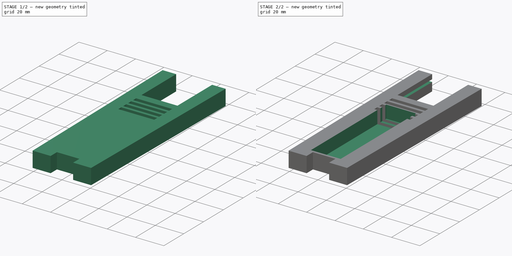
[diagram: build sequence overview — one tinted view per stage of 2, left to right]
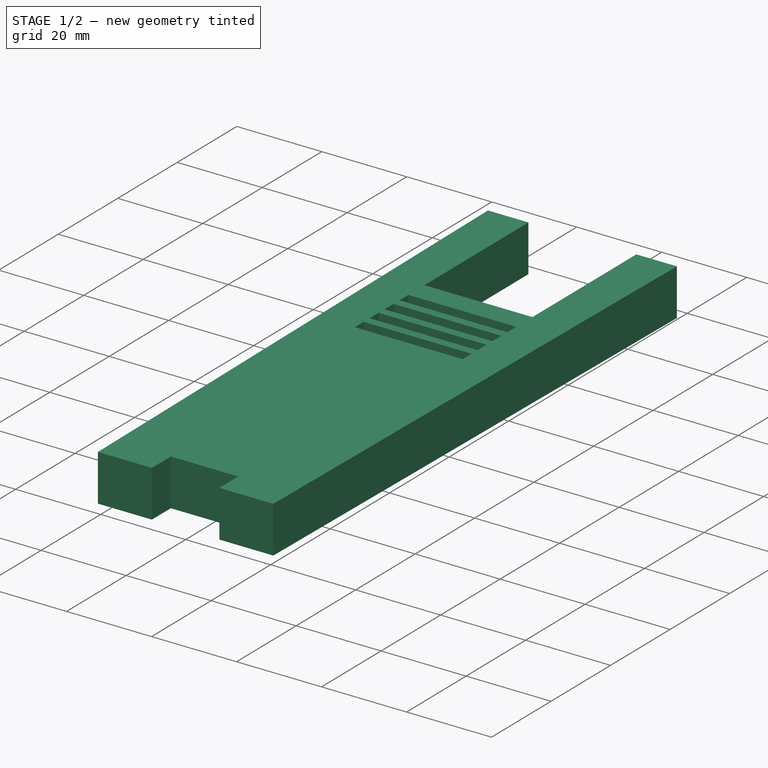
[diagram: stage 1 of 2 — iso view after this stage's code; geometry added in this stage tinted green]
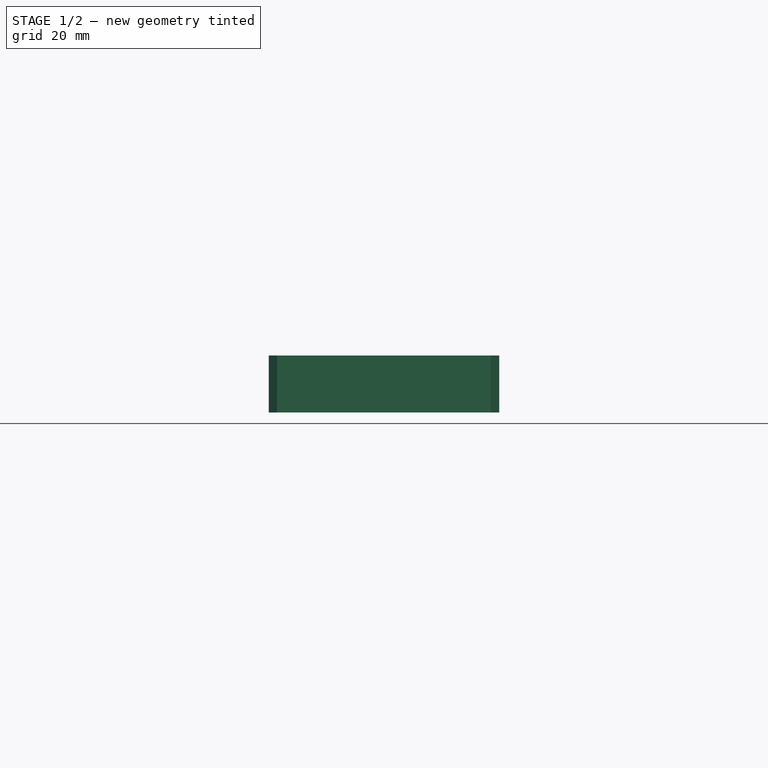
[diagram: stage 1 of 2 — front view after this stage's code; geometry added in this stage tinted green]
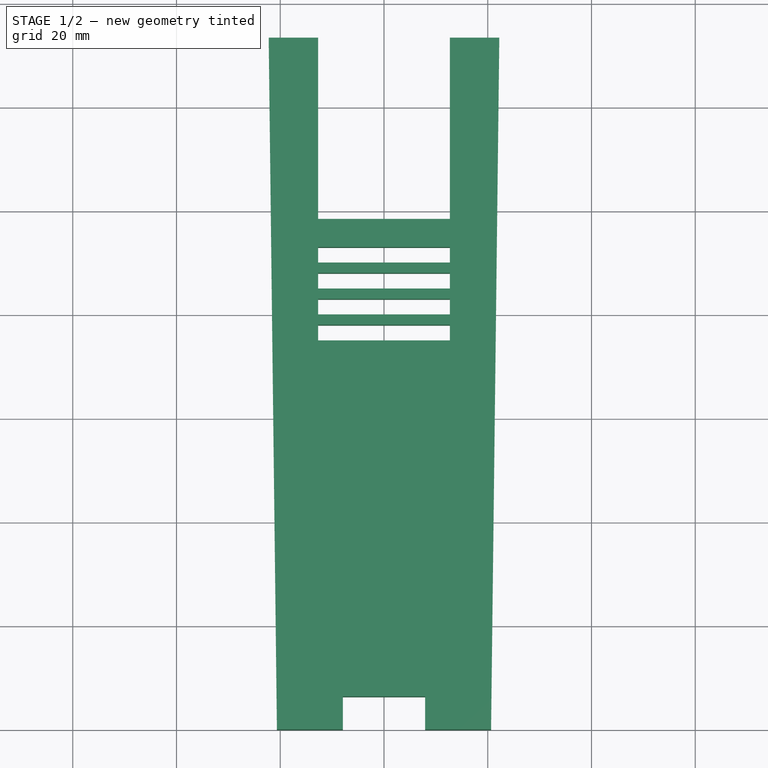
[diagram: stage 1 of 2 — top view after this stage's code; geometry added in this stage tinted green]
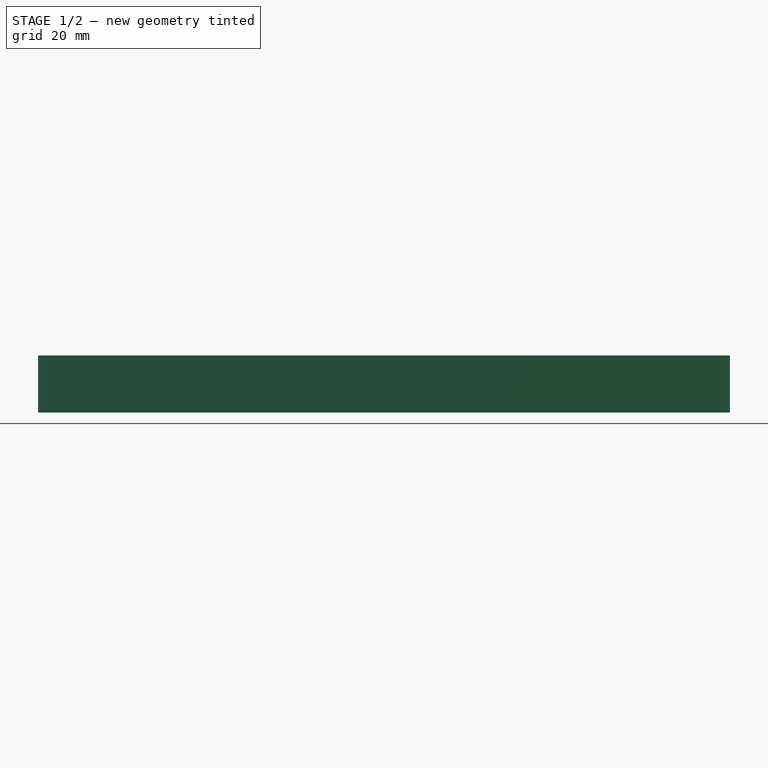
[diagram: stage 1 of 2 — right view after this stage's code; geometry added in this stage tinted green]
FCSTD DOCUMENT  (FreeCAD 0.16R6706 (Git))
Label: WortWorm_Battery
License: All rights reserved
LicenseURL: http://en.wikipedia.org/wiki/All_rights_reserved
objects: Sketcher::SketchObject×5, PartDesign::Pocket×3, PartDesign::Pad×1
note: 13 computed .brp shape members not serialized (recipe doc carries the construction recipe); baked Part::Feature solids carry a one-line shape summary decoded from their .brp

FEATURE [Sketcher::SketchObject] Sketch  label="Base"
  sketch-geometry (12):
    g0: LineSegment StartX=-22.225 StartY=133.35 StartZ=0 EndX=-20.6375 EndY=0 EndZ=0
    g1: LineSegment StartX=-7.9375 StartY=6.35 StartZ=0 EndX=7.9375 EndY=6.35 EndZ=0
    g2: LineSegment StartX=20.6375 StartY=0 StartZ=0 EndX=22.225 EndY=133.35 EndZ=0
    g3: LineSegment StartX=-20.6375 StartY=0 StartZ=0 EndX=-7.9375 EndY=0 EndZ=0
    g4: LineSegment StartX=-7.9375 StartY=0 StartZ=0 EndX=-7.9375 EndY=6.35 EndZ=0
    g5: LineSegment StartX=7.9375 StartY=6.35 StartZ=0 EndX=7.9375 EndY=0 EndZ=0
    g6: LineSegment StartX=7.9375 StartY=0 StartZ=0 EndX=20.6375 EndY=0 EndZ=0
    g7: LineSegment StartX=-22.225 StartY=133.35 StartZ=0 EndX=-12.7 EndY=133.35 EndZ=0
    g8: LineSegment StartX=-12.7 StartY=133.35 StartZ=0 EndX=-12.7 EndY=98.425 EndZ=0
    g9: LineSegment StartX=-12.7 StartY=98.425 StartZ=0 EndX=12.7 EndY=98.425 EndZ=0
    g10: LineSegment StartX=12.7 StartY=98.425 StartZ=0 EndX=12.7 EndY=133.35 EndZ=0
    g11: LineSegment StartX=12.7 StartY=133.35 StartZ=0 EndX=22.225 EndY=133.35 EndZ=0
  constraints (34):
    c: Horizontal(g1)
    c: DistanceX(g0,g2) = 44.45
    c: DistanceX(g0,g2) = 41.275
    c: Coincident(g0,g3)
    c: Coincident(g3,g4)
    c: Coincident(g4,g1)
    c: Coincident(g1,g5)
    c: Coincident(g5,g6)
    c: Coincident(g6,g2)
    c: Horizontal(g3)
    c: Horizontal(g6)
    c: DistanceX(g1,g1) = 15.875
    c: Symmetric(g1,g1,g-2)
    c: Symmetric(g0,g2,g-2)
    c: Symmetric(g0,g2,g-2)
    c: Symmetric(g3,g5,g-2)
    c: DistanceY(g3,g1) = 6.35
    c: DistanceY(g0,g-1) = 0
    c: Equal(g3,g6)
    c: DistanceX(g0,g3) = 12.7
    c: Horizontal(g7)
    c: Coincident(g7,g8)
    c: Vertical(g8)
    c: Coincident(g8,g9)
    c: Horizontal(g9)
    c: Coincident(g9,g10)
    c: Vertical(g10)
    c: Coincident(g10,g11)
    c: Coincident(g11,g2)
    c: Equal(g11,g7)
    c: DistanceX(g7,g10) = 25.4
    c: Coincident(g7,g0)
    c: Horizontal(g11)
    c: DistanceY(g8,g7) = 34.925
FEATURE [PartDesign::Pad] Pad
  Length = 11
  Length2 = 100
  Sketch = -> Sketch
  Type = 0
FEATURE [Sketcher::SketchObject] Sketch001  label="Slits"
  Placement = pos=(0,0,11) rot=(0,0,1;0rad)
  Support = -> Pad [Face14]
  sketch-geometry (16):
    g0: LineSegment StartX=-12.7 StartY=93 StartZ=0 EndX=12.7 EndY=93 EndZ=0
    g1: LineSegment StartX=12.7 StartY=93 StartZ=0 EndX=12.7 EndY=90 EndZ=0
    g2: LineSegment StartX=12.7 StartY=90 StartZ=0 EndX=-12.7 EndY=90 EndZ=0
    g3: LineSegment StartX=-12.7 StartY=90 StartZ=0 EndX=-12.7 EndY=93 EndZ=0
    g4: LineSegment StartX=-12.7 StartY=88 StartZ=0 EndX=12.7 EndY=88 EndZ=0
    g5: LineSegment StartX=12.7 StartY=88 StartZ=0 EndX=12.7 EndY=85 EndZ=0
    g6: LineSegment StartX=12.7 StartY=85 StartZ=0 EndX=-12.7 EndY=85 EndZ=0
    g7: LineSegment StartX=-12.7 StartY=85 StartZ=0 EndX=-12.7 EndY=88 EndZ=0
    g8: LineSegment StartX=-12.7 StartY=83 StartZ=0 EndX=12.7 EndY=83 EndZ=0
    g9: LineSegment StartX=12.7 StartY=83 StartZ=0 EndX=12.7 EndY=80 EndZ=0
    g10: LineSegment StartX=12.7 StartY=80 StartZ=0 EndX=-12.7 EndY=80 EndZ=0
    g11: LineSegment StartX=-12.7 StartY=80 StartZ=0 EndX=-12.7 EndY=83 EndZ=0
    g12: LineSegment StartX=-12.7 StartY=78 StartZ=0 EndX=12.7 EndY=78 EndZ=0
    g13: LineSegment StartX=12.7 StartY=78 StartZ=0 EndX=12.7 EndY=75 EndZ=0
    g14: LineSegment StartX=12.7 StartY=75 StartZ=0 EndX=-12.7 EndY=75 EndZ=0
    g15: LineSegment StartX=-12.7 StartY=75 StartZ=0 EndX=-12.7 EndY=78 EndZ=0
  constraints (48):
    c: Coincident(g0,g1)
    c: Coincident(g1,g2)
    c: Coincident(g2,g3)
    c: Coincident(g3,g0)
    c: Horizontal(g0)
    c: Horizontal(g2)
    c: Vertical(g1)
    c: Vertical(g3)
    c: Coincident(g4,g5)
    c: Coincident(g5,g6)
    c: Coincident(g6,g7)
    c: Coincident(g7,g4)
    c: Horizontal(g4)
    c: Horizontal(g6)
    c: Vertical(g5)
    c: Vertical(g7)
    c: Coincident(g8,g9)
    c: Coincident(g9,g10)
    c: Coincident(g10,g11)
    c: Coincident(g11,g8)
    c: Horizontal(g8)
    c: Horizontal(g10)
    c: Vertical(g9)
    c: Vertical(g11)
    c: Coincident(g12,g13)
    c: Coincident(g13,g14)
    c: Coincident(g14,g15)
    c: Coincident(g15,g12)
    c: Horizontal(g12)
    c: Horizontal(g14)
    c: Vertical(g13)
    c: Vertical(g15)
    c: DistanceX(g0,g0) = 25.4
    c: Symmetric(g0,g0,g-2)
    c: Symmetric(g4,g4,g-2)
    c: Equal(g4,g8)
    c: Equal(g8,g12)
    c: Equal(g12,g0)
    c: Symmetric(g8,g8,g-2)
    c: Symmetric(g12,g12,g-2)
    c: Equal(g13,g9)
    c: Equal(g9,g5)
    c: Equal(g5,g1)
    c: DistanceY(g1,g0) = 3
    c: DistanceY(g4,g1) = 2
    c: DistanceY(g8,g5) = 2
    c: DistanceY(g12,g9) = 2
    c: DistanceY(g-1,g0) = 93
FEATURE [Sketcher::SketchObject] Sketch002
  Placement = pos=(0,0,0) rot=(1,0,0;1.5708rad)
  sketch-geometry (1):
    g0: Circle CenterX=0 CenterY=5.5 CenterZ=0 NormalX=0 NormalY=0 NormalZ=1 Radius=22.225
  constraints (3):
    c: PointOnObject(g0,g-2)
    c: DistanceY(g-1,g0) = 5.5
    c: Radius(g0) = 22.225
FEATURE [PartDesign::Pocket] Pocket
  Length = 5
  Sketch = -> Sketch001
  Type = 1
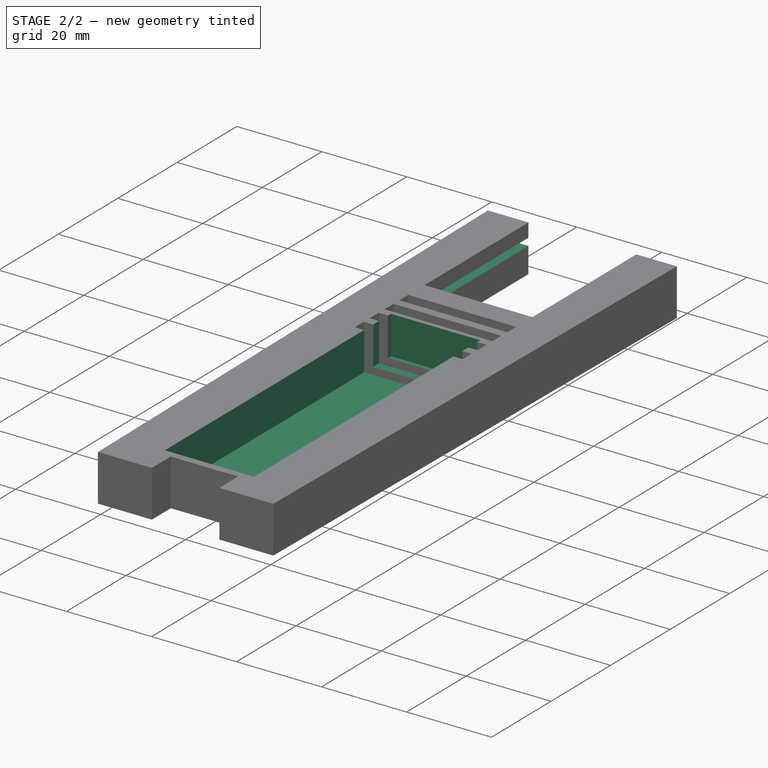
[diagram: stage 2 of 2 — iso view after this stage's code; geometry added in this stage tinted green]
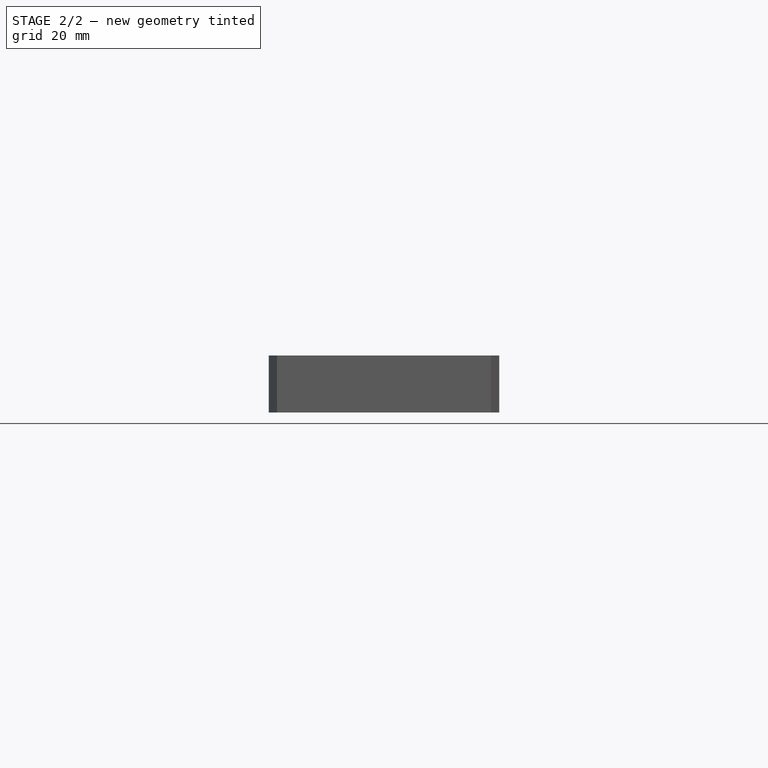
[diagram: stage 2 of 2 — front view after this stage's code; geometry added in this stage tinted green]
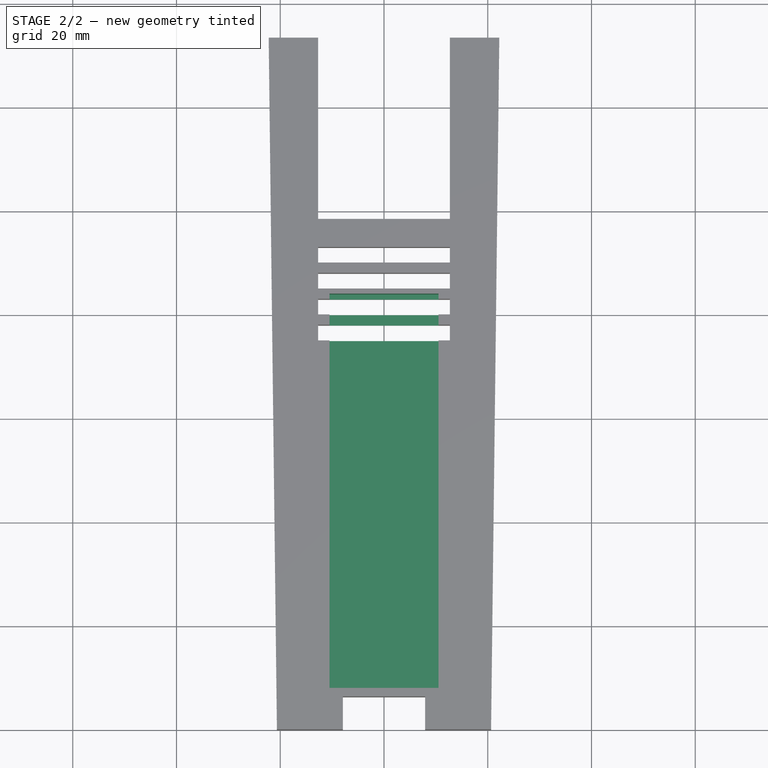
[diagram: stage 2 of 2 — top view after this stage's code; geometry added in this stage tinted green]
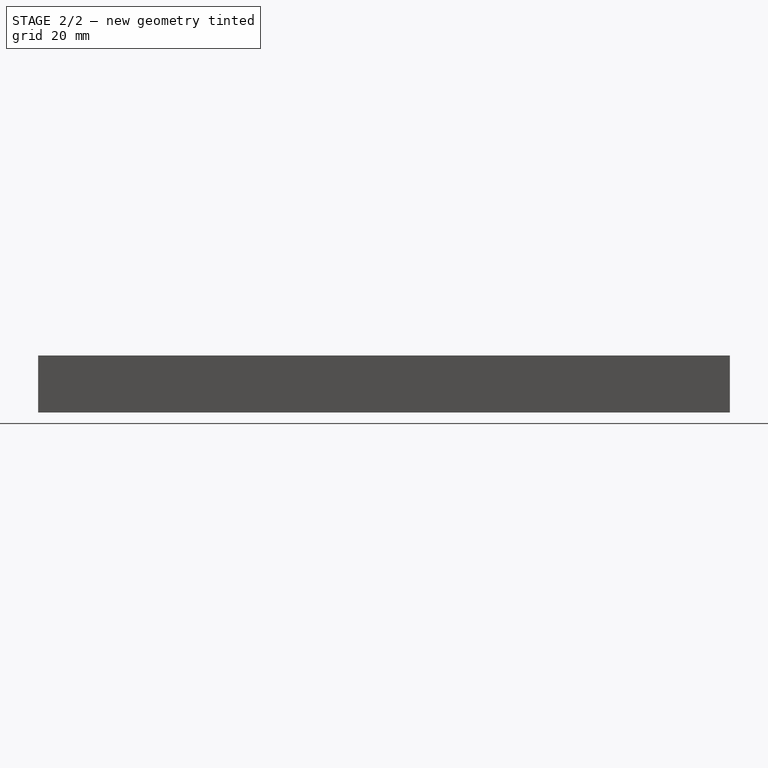
[diagram: stage 2 of 2 — right view after this stage's code; geometry added in this stage tinted green]
FEATURE [Sketcher::SketchObject] Sketch003  label="ESP_slot"
  Placement = pos=(0,133.35,0) rot=(0,0.707107,0.707107;3.14159rad)
  Support = -> Pocket [Face12]
  sketch-geometry (4):
    g0: LineSegment StartX=-15.5 StartY=7.75 StartZ=0 EndX=15.5 EndY=7.75 EndZ=0
    g1: LineSegment StartX=15.5 StartY=7.75 StartZ=0 EndX=15.5 EndY=6 EndZ=0
    g2: LineSegment StartX=15.5 StartY=6 StartZ=0 EndX=-15.5 EndY=6 EndZ=0
    g3: LineSegment StartX=-15.5 StartY=6 StartZ=0 EndX=-15.5 EndY=7.75 EndZ=0
  constraints (12):
    c: Coincident(g0,g1)
    c: Coincident(g1,g2)
    c: Coincident(g2,g3)
    c: Coincident(g3,g0)
    c: Horizontal(g0)
    c: Horizontal(g2)
    c: Vertical(g1)
    c: Vertical(g3)
    c: DistanceY(g1,g0) = 1.75
    c: Symmetric(g2,g1,g-2)
    c: DistanceX(g0,g0) = 31
    c: DistanceY(g-1,g1) = 6
FEATURE [PartDesign::Pocket] Pocket001
  Length = 37
  Sketch = -> Sketch003
  Type = 0
FEATURE [Sketcher::SketchObject] Sketch004  label="BatteryHolder"
  Placement = pos=(0,0,11) rot=(0,0,1;0rad)
  Support = -> Pocket001 [Face5]
  sketch-geometry (4):
    g0: LineSegment StartX=-10.5 StartY=84 StartZ=0 EndX=10.5 EndY=84 EndZ=0
    g1: LineSegment StartX=10.5 StartY=84 StartZ=0 EndX=10.5 EndY=8 EndZ=0
    g2: LineSegment StartX=10.5 StartY=8 StartZ=0 EndX=-10.5 EndY=8 EndZ=0
    g3: LineSegment StartX=-10.5 StartY=8 StartZ=0 EndX=-10.5 EndY=84 EndZ=0
  constraints (12):
    c: Coincident(g0,g1)
    c: Coincident(g1,g2)
    c: Coincident(g2,g3)
    c: Coincident(g3,g0)
    c: Horizontal(g0)
    c: Horizontal(g2)
    c: Vertical(g1)
    c: Vertical(g3)
    c: Symmetric(g0,g0,g-2)
    c: DistanceX(g0,g0) = 21
    c: DistanceY(g1,g0) = 76
    c: DistanceY(g-1,g1) = 8
FEATURE [PartDesign::Pocket] Pocket002
  Length = 9
  Sketch = -> Sketch004
  Type = 0
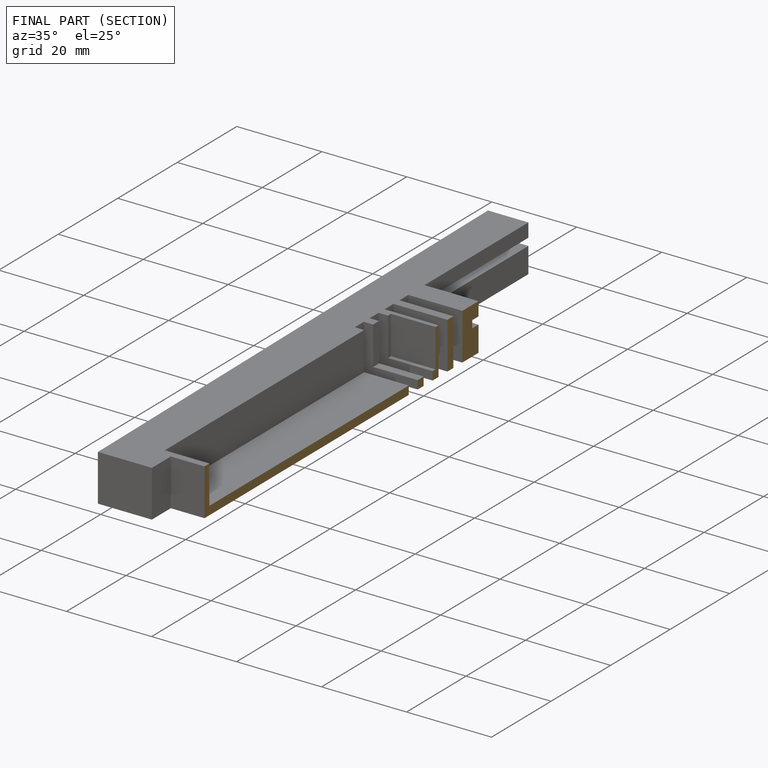
[diagram: finished part — half-section view (interior)]
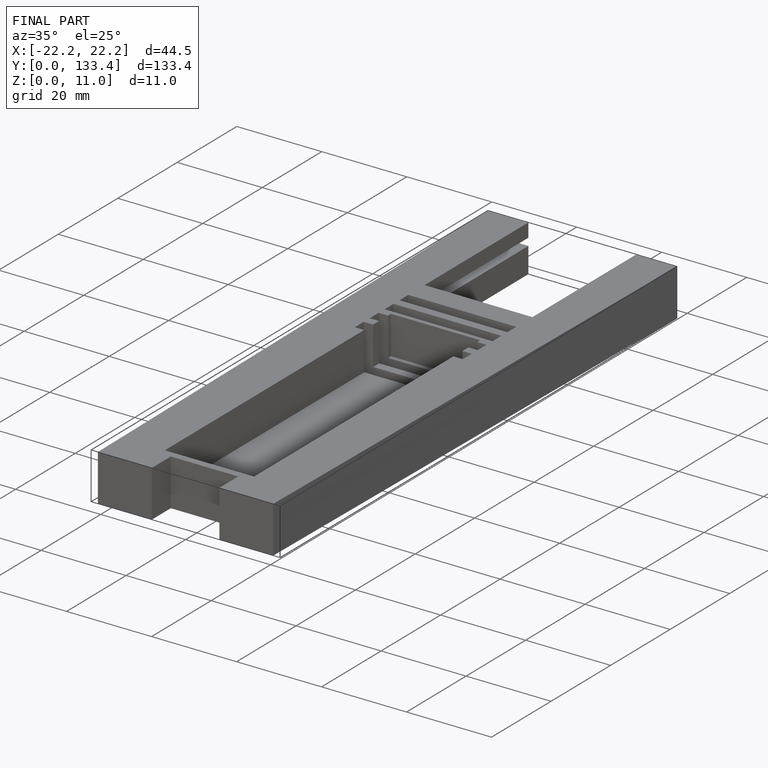
[diagram: finished part — iso view with bounding-box wireframe]
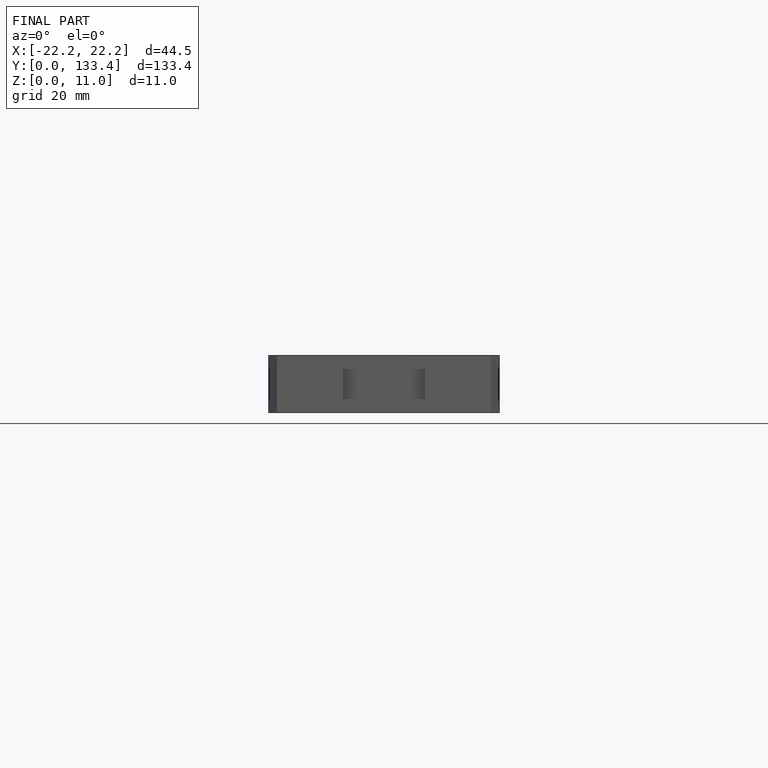
[diagram: finished part — front view with bounding-box wireframe]
